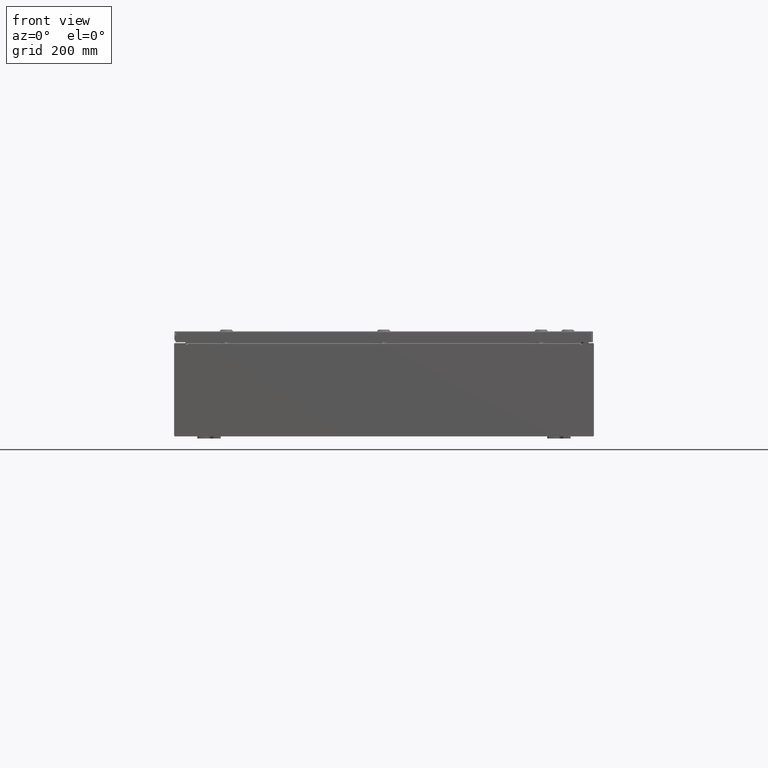
[diagram: clean part render]
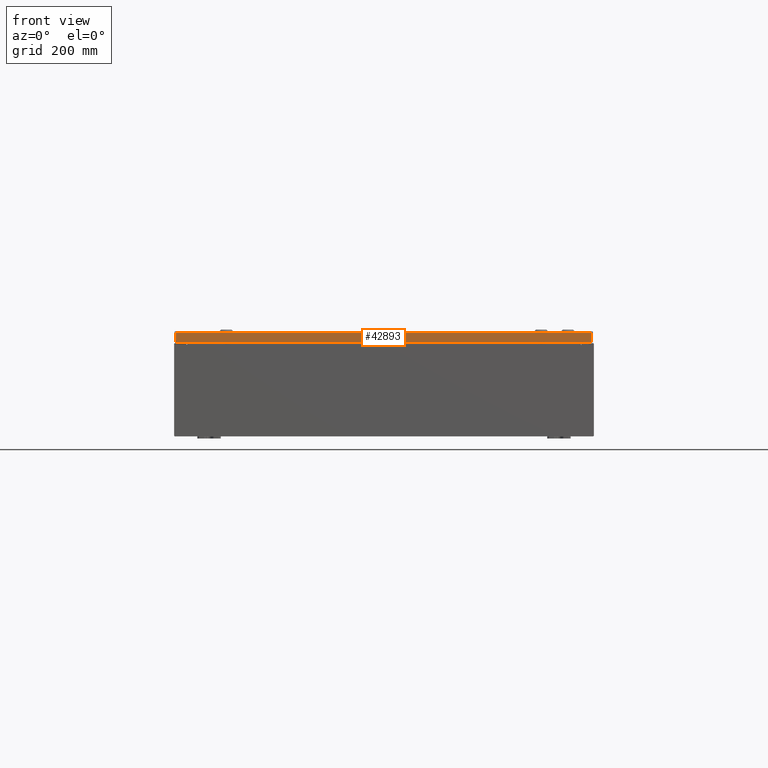
[diagram: same view with one face highlighted and labeled with its STEP entity id]
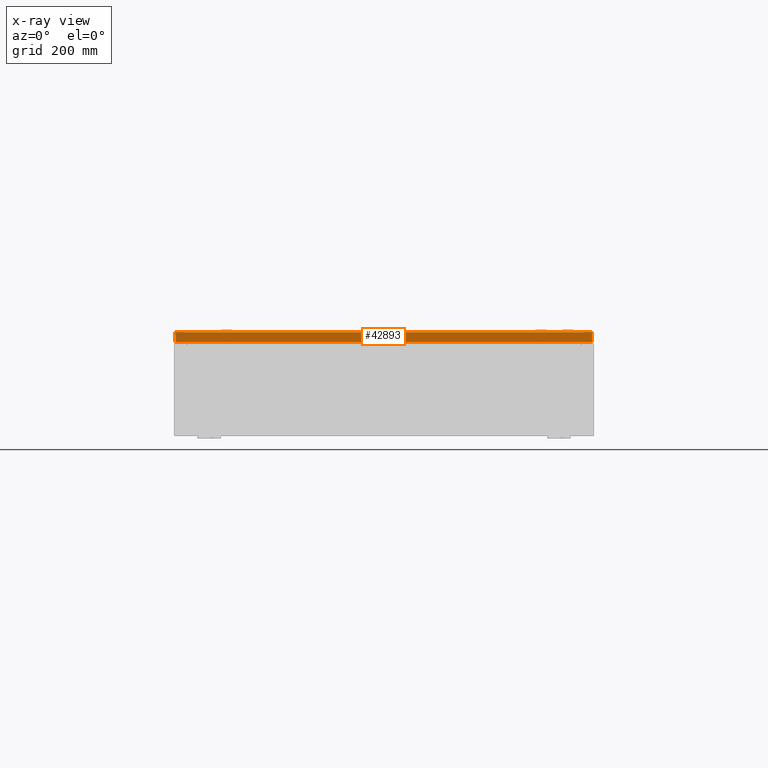
[diagram: x-ray of the same camera — body ghosted, the highlighted face saturated]
A machine part, front view. The second image highlights one B-rep face of the part: STEP entity #42893.
The next image is the same camera in x-ray: the body ghosted, the highlighted face saturated — about 0% of this face is hidden behind the body in this view.
In plain terms, the highlighted planar face has unit normal (-0, 1, -0).
Its self-contained STEP definition (entity closure, byte-faithful):
#620 = VERTEX_POINT ( 'NONE', #48201 ) ;
#3406 = ORIENTED_EDGE ( 'NONE', *, *, #27493, .F. ) ;
#11373 = EDGE_LOOP ( 'NONE', ( #50337, #34709, #3406, #42498 ) ) ;
#11932 = CARTESIAN_POINT ( 'NONE',  ( -17.84865786437626800, -23.93750000000000000, 1.215004175463259200E-013 ) ) ;
#12311 = DIRECTION ( 'NONE',  ( 0.0000000000000000000, 5.064839849203732200E-015, 1.000000000000000000 ) ) ;
#14607 = VECTOR ( 'NONE', #24330, 39.37007874015748100 ) ;
#17551 = CARTESIAN_POINT ( 'NONE',  ( 17.84865786437627100, -23.93750000000000000, -0.08769999999999550400 ) ) ;
#18777 = CARTESIAN_POINT ( 'NONE',  ( 17.93750000000000400, -23.93750000000000000, -0.08769999999999550400 ) ) ;
#20633 = VECTOR ( 'NONE', #43667, 39.37007874015748100 ) ;
#24024 = DIRECTION ( 'NONE',  ( -1.000000000000000000, -0.0000000000000000000, 1.218385167906012700E-016 ) ) ;
#24330 = DIRECTION ( 'NONE',  ( 1.000000000000000000, 6.170925750089154100E-031, -3.189293793798685400E-045 ) ) ;
#25628 = EDGE_CURVE ( 'NONE', #46005, #620, #34747, .T. ) ;
#27022 = DIRECTION ( 'NONE',  ( -0.0000000000000000000, -5.064839849203732200E-015, -1.000000000000000000 ) ) ;
#27493 = EDGE_CURVE ( 'NONE', #61823, #620, #32989, .T. ) ;
#32712 = AXIS2_PLACEMENT_3D ( 'NONE', #59870, #44038, #12311 ) ;
#32989 = LINE ( 'NONE', #60959, #59577 ) ;
#34709 = ORIENTED_EDGE ( 'NONE', *, *, #25628, .T. ) ;
#34747 = LINE ( 'NONE', #11932, #20633 ) ;
#38714 = PLANE ( 'NONE',  #32712 ) ;
#42498 = ORIENTED_EDGE ( 'NONE', *, *, #59109, .F. ) ;
#42893 = ADVANCED_FACE ( 'NONE', ( #68058 ), #38714, .F. ) ;
#42951 = CARTESIAN_POINT ( 'NONE',  ( -17.84865786437627100, -23.93750000000000000, -0.08769999999999550400 ) ) ;
#43667 = DIRECTION ( 'NONE',  ( 0.0000000000000000000, -5.064839849203732200E-015, -1.000000000000000000 ) ) ;
#43919 = VERTEX_POINT ( 'NONE', #17551 ) ;
#44038 = DIRECTION ( 'NONE',  ( -6.170925750089153200E-031, 1.000000000000000000, -5.064839849203732200E-015 ) ) ;
#44483 = LINE ( 'NONE', #18777, #14607 ) ;
#46005 = VERTEX_POINT ( 'NONE', #42951 ) ;
#48201 = CARTESIAN_POINT ( 'NONE',  ( -17.84865786437627100, -23.93750000000000400, -0.9376999999999954300 ) ) ;
#49169 = LINE ( 'NONE', #53457, #61663 ) ;
#50337 = ORIENTED_EDGE ( 'NONE', *, *, #62464, .F. ) ;
#51087 = CARTESIAN_POINT ( 'NONE',  ( 17.84865786437627100, -23.93750000000000400, -0.9376999999999997600 ) ) ;
#53457 = CARTESIAN_POINT ( 'NONE',  ( 17.84865786437627100, -23.93750000000000000, -0.07469999999999962800 ) ) ;
#59109 = EDGE_CURVE ( 'NONE', #43919, #61823, #49169, .T. ) ;
#59577 = VECTOR ( 'NONE', #24024, 39.37007874015748100 ) ;
#59870 = CARTESIAN_POINT ( 'NONE',  ( 1.477165351427591000E-029, -23.93750000000000000, 1.215004175463259200E-013 ) ) ;
#60959 = CARTESIAN_POINT ( 'NONE',  ( 17.93750000000000400, -23.93750000000000400, -0.9376999999999997600 ) ) ;
#61663 = VECTOR ( 'NONE', #27022, 39.37007874015748100 ) ;
#61823 = VERTEX_POINT ( 'NONE', #51087 ) ;
#62464 = EDGE_CURVE ( 'NONE', #46005, #43919, #44483, .T. ) ;
#68058 = FACE_OUTER_BOUND ( 'NONE', #11373, .T. ) ;